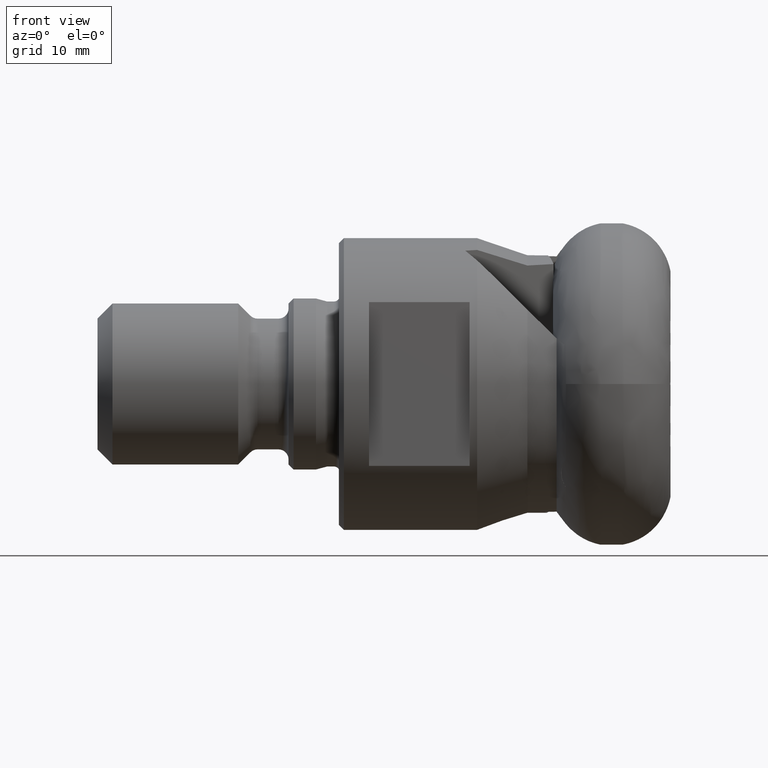
[diagram: clean part render]
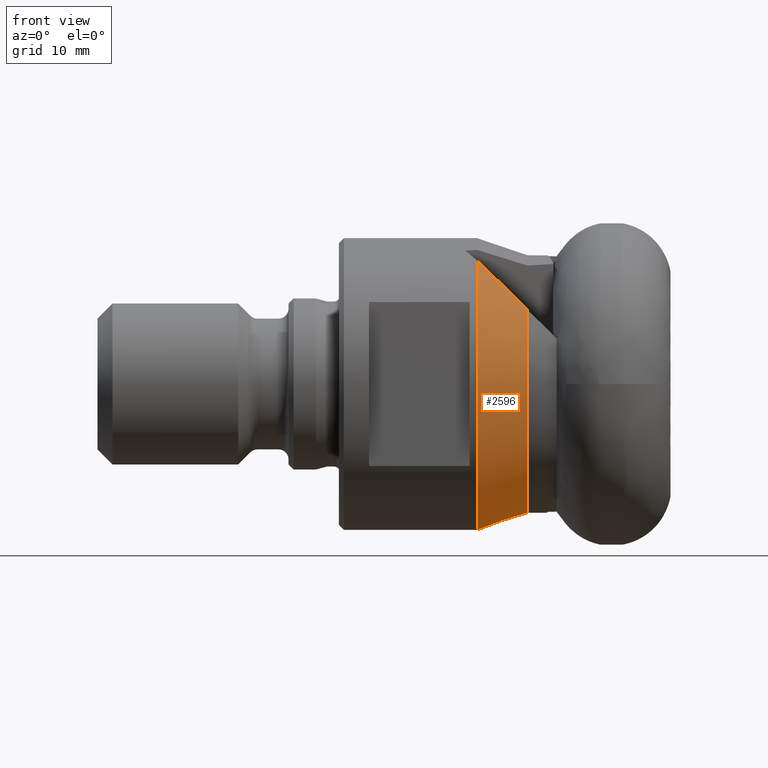
[diagram: same view with one face highlighted and labeled with its STEP entity id]
A machine part, front view. The second image highlights one B-rep face of the part: STEP entity #2596.
In plain terms, the highlighted conical surface has half-angle 18.778 deg.
Its self-contained STEP definition (entity closure, byte-faithful):
#31 = VERTEX_POINT ( 'NONE', #757 ) ;
#42 = CARTESIAN_POINT ( 'NONE',  ( -13.00000000000000000, 0.0000000000000000000, 0.0000000000000000000 ) ) ;
#59 = CARTESIAN_POINT ( 'NONE',  ( -13.00000000000000000, 0.0000000000000000000, -12.80000000000000100 ) ) ;
#214 = CIRCLE ( 'NONE', #428, 12.80000000000000100 ) ;
#404 = VERTEX_POINT ( 'NONE', #3599 ) ;
#426 = DIRECTION ( 'NONE',  ( 0.0000000000000000000, 0.0000000000000000000, 1.000000000000000000 ) ) ;
#428 = AXIS2_PLACEMENT_3D ( 'NONE', #42, #3623, #1118 ) ;
#504 = FACE_OUTER_BOUND ( 'NONE', #2487, .T. ) ;
#552 = CIRCLE ( 'NONE', #2238, 14.49999999999999800 ) ;
#560 = DIRECTION ( 'NONE',  ( 0.0000000000000000000, 0.0000000000000000000, -1.000000000000000000 ) ) ;
#614 = B_SPLINE_CURVE_WITH_KNOTS ( 'NONE', 3,
 ( #2260, #850, #1295, #4305 ),
 .UNSPECIFIED., .F., .F.,
 ( 4, 4 ),
 ( 2.112502009710081000E-007, 0.005281448073991602100 ),
 .UNSPECIFIED. ) ;
#757 = CARTESIAN_POINT ( 'NONE',  ( -18.00000000000000000, -7.707549104112251500, 12.28184378697671000 ) ) ;
#850 = CARTESIAN_POINT ( 'NONE',  ( -14.66666092290167200, 5.243333898178136100, -12.29533891561253800 ) ) ;
#908 = CARTESIAN_POINT ( 'NONE',  ( -18.00000000000000000, 0.0000000000000000000, 0.0000000000000000000 ) ) ;
#1064 = CARTESIAN_POINT ( 'NONE',  ( -18.00000000000000000, 0.0000000000000000000, 0.0000000000000000000 ) ) ;
#1118 = DIRECTION ( 'NONE',  ( 0.0000000000000000000, 0.0000000000000000000, -1.000000000000000000 ) ) ;
#1175 = VERTEX_POINT ( 'NONE', #59 ) ;
#1295 = CARTESIAN_POINT ( 'NONE',  ( -16.33332825703788800, 5.477568716488850200, -12.81148368645487100 ) ) ;
#1301 = CARTESIAN_POINT ( 'NONE',  ( -13.00000000000000000, 0.0000000000000000000, 0.0000000000000000000 ) ) ;
#1307 = CARTESIAN_POINT ( 'NONE',  ( -14.80936224973118300, -9.917464024187310700, 9.215915868444241700 ) ) ;
#1310 = EDGE_CURVE ( 'NONE', #1401, #1175, #214, .T. ) ;
#1401 = VERTEX_POINT ( 'NONE', #4311 ) ;
#1501 = CIRCLE ( 'NONE', #3530, 12.80000000000000100 ) ;
#1664 = VERTEX_POINT ( 'NONE', #3323 ) ;
#1670 =( BOUNDED_CURVE ( )  B_SPLINE_CURVE ( 3, ( #3425, #1307, #3772, #3798 ),
 .UNSPECIFIED., .F., .T. ) 
 B_SPLINE_CURVE_WITH_KNOTS ( ( 4, 4 ),
 ( 4.859872228534810800, 5.328326317937000000 ),
 .UNSPECIFIED. ) 
 CURVE ( )  GEOMETRIC_REPRESENTATION_ITEM ( )  RATIONAL_B_SPLINE_CURVE ( ( 1.000000000000000000, 0.9817960186766951900, 0.9817960186766951900, 1.000000000000000000 ) ) 
 REPRESENTATION_ITEM ( '' )  );
#1678 = ORIENTED_EDGE ( 'NONE', *, *, #3755, .T. ) ;
#1842 = CARTESIAN_POINT ( 'NONE',  ( -18.00000000000000000, 0.0000000000000000000, -14.49999999999999800 ) ) ;
#1893 = EDGE_CURVE ( 'NONE', #1175, #1664, #1501, .T. ) ;
#2180 = CONICAL_SURFACE ( 'NONE', #4304, 12.80000000000000100, 0.3277385067805552200 ) ;
#2238 = AXIS2_PLACEMENT_3D ( 'NONE', #1064, #3523, #2848 ) ;
#2260 = CARTESIAN_POINT ( 'NONE',  ( -13.00000000000000200, 5.009099980907676800, -11.77917303469436100 ) ) ;
#2487 = EDGE_LOOP ( 'NONE', ( #3588, #3648, #3221, #1678, #3125, #4212 ) ) ;
#2596 = ADVANCED_FACE ( 'NONE', ( #504 ), #2180, .T. ) ;
#2608 = EDGE_CURVE ( 'NONE', #1664, #404, #614, .T. ) ;
#2848 = DIRECTION ( 'NONE',  ( 0.0000000000000000000, 0.0000000000000000000, -1.000000000000000000 ) ) ;
#3125 = ORIENTED_EDGE ( 'NONE', *, *, #2608, .F. ) ;
#3221 = ORIENTED_EDGE ( 'NONE', *, *, #3939, .T. ) ;
#3323 = CARTESIAN_POINT ( 'NONE',  ( -13.00000000000000200, 5.009099980907676800, -11.77917303469436100 ) ) ;
#3425 = CARTESIAN_POINT ( 'NONE',  ( -13.00000000000000000, -10.46421511142430600, 7.371580705780766100 ) ) ;
#3471 = DIRECTION ( 'NONE',  ( 1.000000000000000000, -0.0000000000000000000, -0.0000000000000000000 ) ) ;
#3523 = DIRECTION ( 'NONE',  ( 1.000000000000000000, -0.0000000000000000000, -0.0000000000000000000 ) ) ;
#3530 = AXIS2_PLACEMENT_3D ( 'NONE', #1301, #3471, #4116 ) ;
#3540 = VERTEX_POINT ( 'NONE', #1842 ) ;
#3588 = ORIENTED_EDGE ( 'NONE', *, *, #1310, .F. ) ;
#3599 = CARTESIAN_POINT ( 'NONE',  ( -18.00000000000000000, 5.711804154419635200, -13.32761393879469100 ) ) ;
#3623 = DIRECTION ( 'NONE',  ( 1.000000000000000000, -0.0000000000000000000, -0.0000000000000000000 ) ) ;
#3648 = ORIENTED_EDGE ( 'NONE', *, *, #3903, .T. ) ;
#3755 = EDGE_CURVE ( 'NONE', #3540, #404, #4643, .T. ) ;
#3772 = CARTESIAN_POINT ( 'NONE',  ( -16.50693143412558300, -8.981537771051213400, 10.88301812722579100 ) ) ;
#3798 = CARTESIAN_POINT ( 'NONE',  ( -18.00000000000000000, -7.707549104112251500, 12.28184378697671000 ) ) ;
#3898 = DIRECTION ( 'NONE',  ( -1.000000000000000000, 0.0000000000000000000, 0.0000000000000000000 ) ) ;
#3903 = EDGE_CURVE ( 'NONE', #1401, #31, #1670, .T. ) ;
#3939 = EDGE_CURVE ( 'NONE', #31, #3540, #552, .T. ) ;
#4116 = DIRECTION ( 'NONE',  ( 0.0000000000000000000, 0.0000000000000000000, -1.000000000000000000 ) ) ;
#4200 = CARTESIAN_POINT ( 'NONE',  ( -13.00000000000000000, 0.0000000000000000000, 0.0000000000000000000 ) ) ;
#4212 = ORIENTED_EDGE ( 'NONE', *, *, #1893, .F. ) ;
#4304 = AXIS2_PLACEMENT_3D ( 'NONE', #4200, #3898, #426 ) ;
#4305 = CARTESIAN_POINT ( 'NONE',  ( -18.00000000000000000, 5.711804154419635200, -13.32761393879469100 ) ) ;
#4311 = CARTESIAN_POINT ( 'NONE',  ( -13.00000000000000000, -10.46421511142430600, 7.371580705780766100 ) ) ;
#4367 = DIRECTION ( 'NONE',  ( 1.000000000000000000, -0.0000000000000000000, -0.0000000000000000000 ) ) ;
#4545 = AXIS2_PLACEMENT_3D ( 'NONE', #908, #4367, #560 ) ;
#4643 = CIRCLE ( 'NONE', #4545, 14.49999999999999800 ) ;